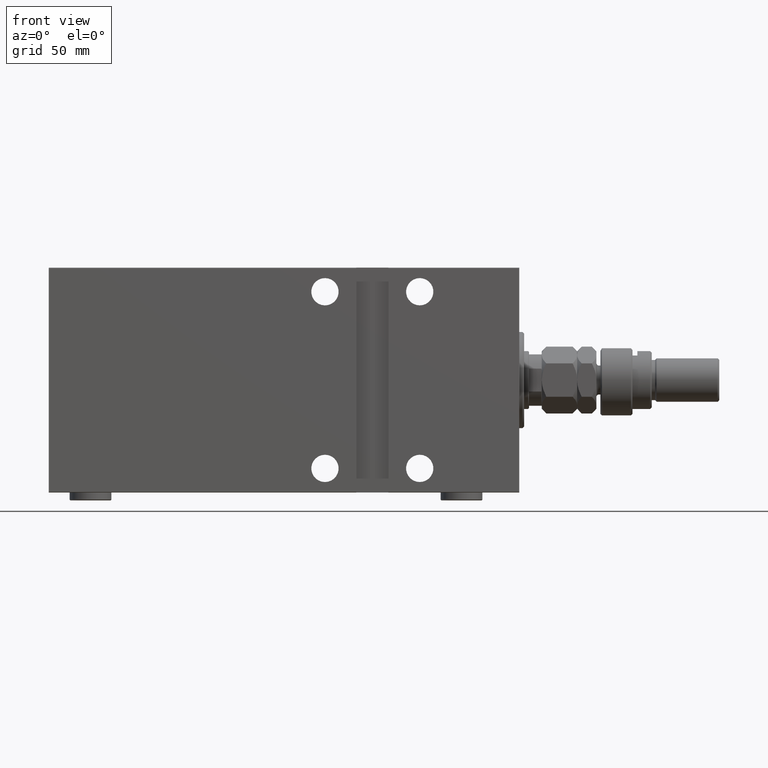
[diagram: clean part render]
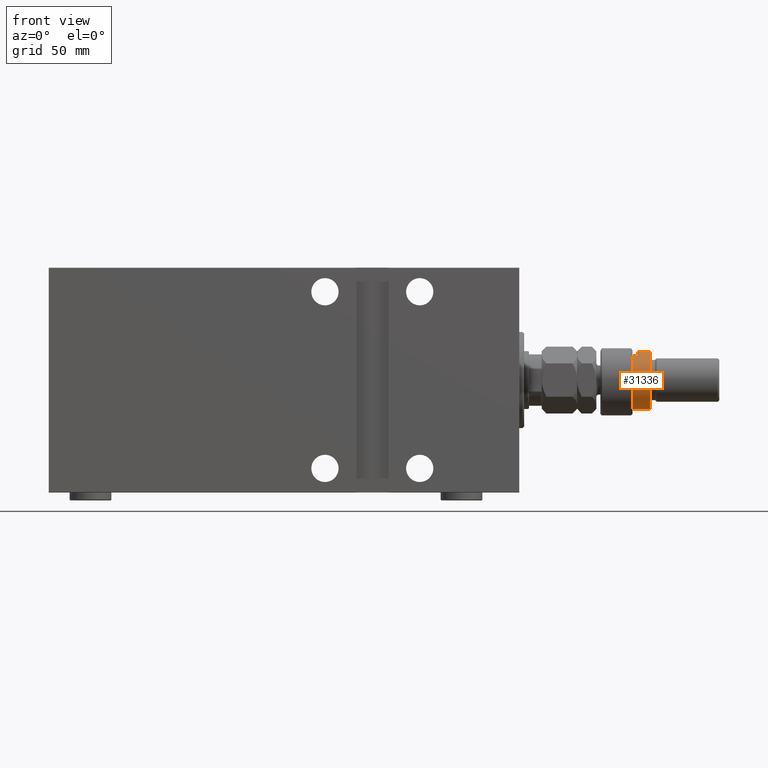
[diagram: same view with one face highlighted and labeled with its STEP entity id]
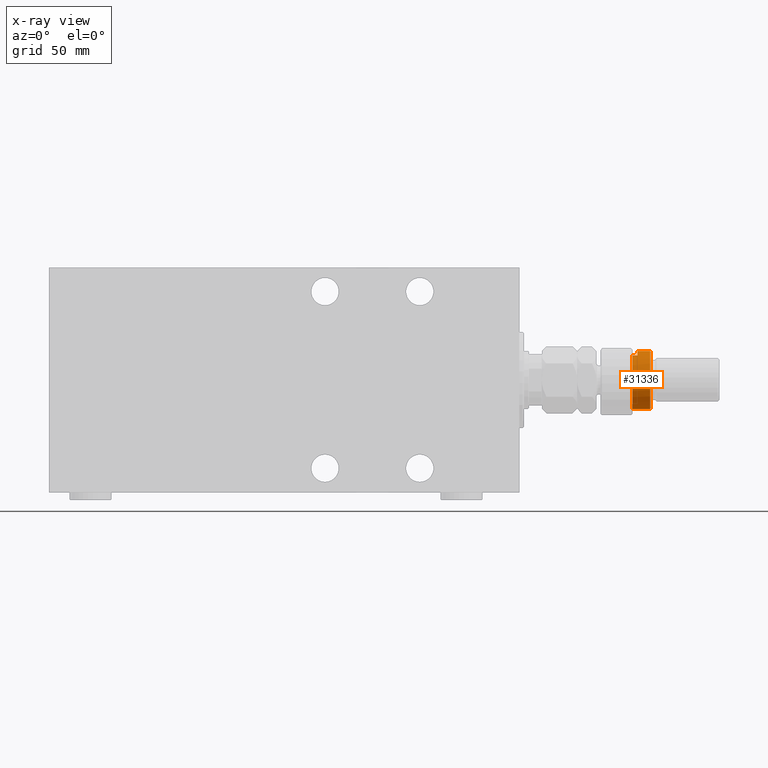
[diagram: x-ray of the same camera — body ghosted, the highlighted face saturated]
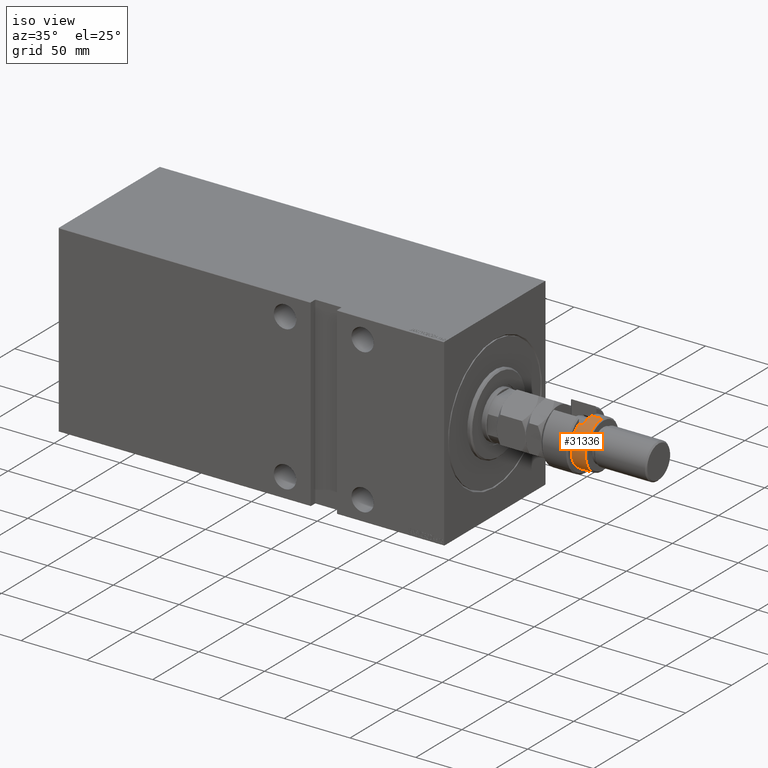
[diagram: same view with one face highlighted and labeled with its STEP entity id]
A machine part, front view. The second image highlights one B-rep face of the part: STEP entity #31336.
The next image is the same camera in x-ray: the body ghosted, the highlighted face saturated — about 0% of this face is hidden behind the body in this view.
A second angle (iso view) of the same face is appended — the face is thin or edge-on in the first view.
In plain terms, the highlighted cylindrical surface (edge-blend (fillet) strip) has radius 18 mm, axis along (-1, -0, 0).
Its self-contained STEP definition (entity closure, byte-faithful):
#268 = DIRECTION ( 'NONE',  ( 0.000000000000000000, 0.000000000000000000, -1.000000000000000000 ) ) ;
#503 = ORIENTED_EDGE ( 'NONE', *, *, #43227, .T. ) ;
#1499 = VERTEX_POINT ( 'NONE', #27046 ) ;
#1593 = CARTESIAN_POINT ( 'NONE',  ( 18.00000000000000000, 2.204364238465235428E-15, 30.99999999999999645 ) ) ;
#2999 = CARTESIAN_POINT ( 'NONE',  ( 0.000000000000000000, 0.000000000000000000, 23.00000000000000000 ) ) ;
#3638 = VECTOR ( 'NONE', #40601, 1000.000000000000000 ) ;
#3698 = EDGE_CURVE ( 'NONE', #25309, #6497, #44971, .T. ) ;
#4064 = ORIENTED_EDGE ( 'NONE', *, *, #45579, .F. ) ;
#4526 = DIRECTION ( 'NONE',  ( 1.000000000000000000, 0.000000000000000000, 0.000000000000000000 ) ) ;
#4736 = CARTESIAN_POINT ( 'NONE',  ( -15.28888485142065434, -9.500000000000000000, 23.00000000000000000 ) ) ;
#5341 = LINE ( 'NONE', #8890, #41238 ) ;
#5522 = AXIS2_PLACEMENT_3D ( 'NONE', #15379, #268, #4526 ) ;
#5945 = DIRECTION ( 'NONE',  ( 1.000000000000000000, 0.000000000000000000, 0.000000000000000000 ) ) ;
#6309 = DIRECTION ( 'NONE',  ( -1.000000000000000000, 0.000000000000000000, 0.000000000000000000 ) ) ;
#6497 = VERTEX_POINT ( 'NONE', #43891 ) ;
#6818 = AXIS2_PLACEMENT_3D ( 'NONE', #16570, #27639, #5945 ) ;
#6858 = CARTESIAN_POINT ( 'NONE',  ( -18.00000000000000000, 0.000000000000000000, 30.99999999999999645 ) ) ;
#7599 = CIRCLE ( 'NONE', #6818, 18.00000000000000000 ) ;
#8890 = CARTESIAN_POINT ( 'NONE',  ( 18.00000000000000000, 2.204364238465235428E-15, 32.00000000000000000 ) ) ;
#9121 = DIRECTION ( 'NONE',  ( -0.000000000000000000, -0.000000000000000000, -1.000000000000000000 ) ) ;
#9791 = CYLINDRICAL_SURFACE ( 'NONE', #25235, 18.00000000000000000 ) ;
#10086 = DIRECTION ( 'NONE',  ( 0.000000000000000000, 0.000000000000000000, -1.000000000000000000 ) ) ;
#11036 = VERTEX_POINT ( 'NONE', #33819 ) ;
#11694 = EDGE_LOOP ( 'NONE', ( #19227, #13053, #503, #4064, #33357, #16027 ) ) ;
#11745 = VECTOR ( 'NONE', #12686, 1000.000000000000000 ) ;
#11850 = LINE ( 'NONE', #26235, #3638 ) ;
#12029 = EDGE_CURVE ( 'NONE', #30976, #1499, #5341, .T. ) ;
#12505 = VERTEX_POINT ( 'NONE', #6858 ) ;
#12686 = DIRECTION ( 'NONE',  ( -0.000000000000000000, -0.000000000000000000, -1.000000000000000000 ) ) ;
#13053 = ORIENTED_EDGE ( 'NONE', *, *, #27436, .T. ) ;
#15379 = CARTESIAN_POINT ( 'NONE',  ( 0.000000000000000000, 0.000000000000000000, 30.99999999999999645 ) ) ;
#16027 = ORIENTED_EDGE ( 'NONE', *, *, #20640, .T. ) ;
#16570 = CARTESIAN_POINT ( 'NONE',  ( 0.000000000000000000, 0.000000000000000000, 20.00000000000000000 ) ) ;
#19227 = ORIENTED_EDGE ( 'NONE', *, *, #12029, .F. ) ;
#20260 = CIRCLE ( 'NONE', #36079, 18.00000000000000000 ) ;
#20397 = DIRECTION ( 'NONE',  ( -1.000000000000000000, 0.000000000000000000, 0.000000000000000000 ) ) ;
#20573 = CIRCLE ( 'NONE', #5522, 18.00000000000000000 ) ;
#20640 = EDGE_CURVE ( 'NONE', #6497, #1499, #7599, .T. ) ;
#23948 = DIRECTION ( 'NONE',  ( -0.000000000000000000, -0.000000000000000000, -1.000000000000000000 ) ) ;
#25235 = AXIS2_PLACEMENT_3D ( 'NONE', #34544, #23948, #20397 ) ;
#25309 = VERTEX_POINT ( 'NONE', #4736 ) ;
#26235 = CARTESIAN_POINT ( 'NONE',  ( -18.00000000000000000, 0.000000000000000000, 32.00000000000000000 ) ) ;
#27046 = CARTESIAN_POINT ( 'NONE',  ( 18.00000000000000000, 2.204364238465235428E-15, 20.00000000000000000 ) ) ;
#27436 = EDGE_CURVE ( 'NONE', #30976, #12505, #20573, .T. ) ;
#27639 = DIRECTION ( 'NONE',  ( 0.000000000000000000, 0.000000000000000000, 1.000000000000000000 ) ) ;
#30558 = FACE_OUTER_BOUND ( 'NONE', #11694, .T. ) ;
#30976 = VERTEX_POINT ( 'NONE', #1593 ) ;
#31336 = ADVANCED_FACE ( 'NONE', ( #30558 ), #9791, .T. ) ;
#33357 = ORIENTED_EDGE ( 'NONE', *, *, #3698, .T. ) ;
#33819 = CARTESIAN_POINT ( 'NONE',  ( -18.00000000000000000, 0.000000000000000000, 23.00000000000000000 ) ) ;
#34544 = CARTESIAN_POINT ( 'NONE',  ( 0.000000000000000000, 0.000000000000000000, 32.00000000000000000 ) ) ;
#34816 = CARTESIAN_POINT ( 'NONE',  ( -15.28888485142065434, -9.500000000000000000, 32.00000000000000000 ) ) ;
#36079 = AXIS2_PLACEMENT_3D ( 'NONE', #2999, #10086, #6309 ) ;
#40601 = DIRECTION ( 'NONE',  ( -0.000000000000000000, -0.000000000000000000, -1.000000000000000000 ) ) ;
#41238 = VECTOR ( 'NONE', #9121, 1000.000000000000000 ) ;
#43227 = EDGE_CURVE ( 'NONE', #12505, #11036, #11850, .T. ) ;
#43891 = CARTESIAN_POINT ( 'NONE',  ( -15.28888485142065434, -9.500000000000000000, 19.99999999999999645 ) ) ;
#44971 = LINE ( 'NONE', #34816, #11745 ) ;
#45579 = EDGE_CURVE ( 'NONE', #25309, #11036, #20260, .T. ) ;